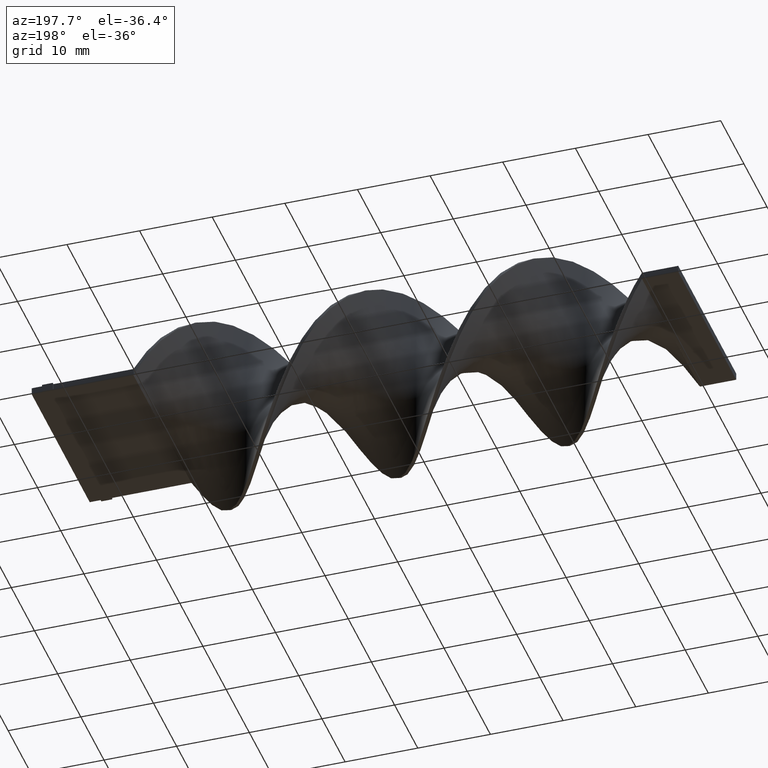
[diagram: clean part render]
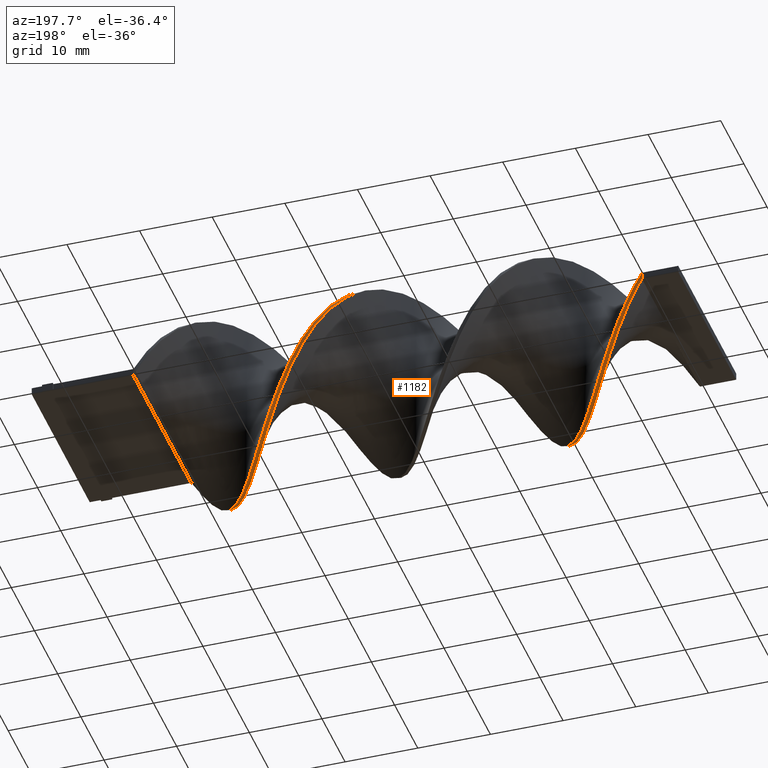
[diagram: same view with one face highlighted and labeled with its STEP entity id]
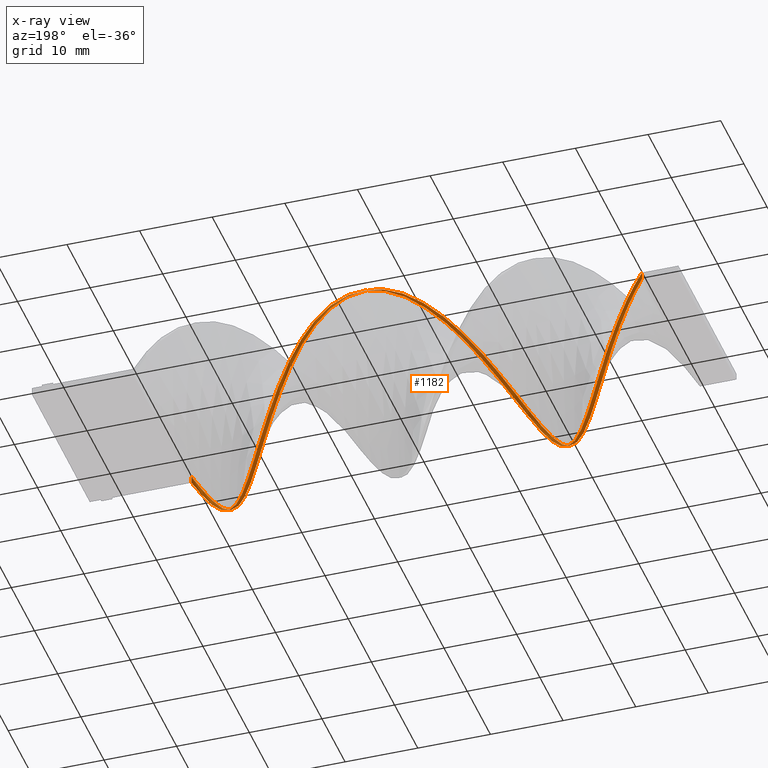
[diagram: x-ray of the same camera — body ghosted, the highlighted face saturated]
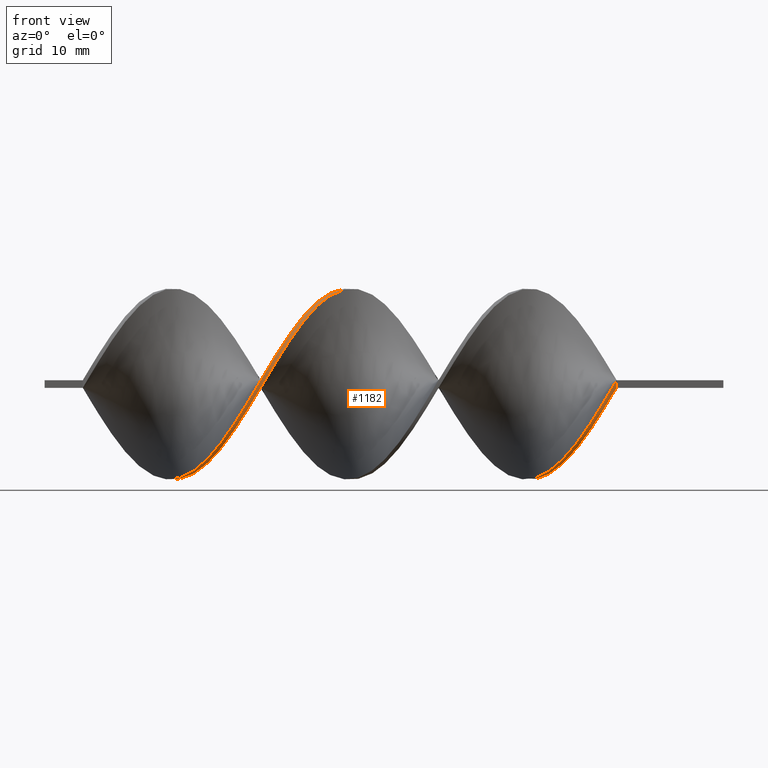
[diagram: same view with one face highlighted and labeled with its STEP entity id]
A machine part, auxiliary view. The second image highlights one B-rep face of the part: STEP entity #1182.
The next image is the same camera in x-ray: the body ghosted, the highlighted face saturated — about 9% of this face is hidden behind the body in this view.
A second angle (front view) of the same face is appended — the face is thin or edge-on in the first view.
In plain terms, the highlighted face is a freeform B-spline surface patch.
Its self-contained STEP definition (entity closure, byte-faithful):
#4 = CARTESIAN_POINT ( 'NONE',  ( -82.20512820512820440, 12.25643054996942816, -2.505974894881450421 ) ) ;
#10 = CARTESIAN_POINT ( 'NONE',  ( -29.25641025641025550, 6.297684876700515133, -10.91542446871784477 ) ) ;
#18 = CARTESIAN_POINT ( 'NONE',  ( -29.25641025641025550, 5.405725462660111447, -11.38356088229226870 ) ) ;
#23 = CARTESIAN_POINT ( 'NONE',  ( -23.87179487179487225, -3.502453542048291624, -12.10537671137499238 ) ) ;
#26 = CARTESIAN_POINT ( 'NONE',  ( -19.38461538461537970, -9.687945681259163777, -7.914777853924387152 ) ) ;
#32 = CARTESIAN_POINT ( 'NONE',  ( -38.23076923076921929, 12.56071099161113303, 1.017774790278253905 ) ) ;
#35 = ORIENTED_EDGE ( 'NONE', *, *, #440, .T. ) ;
#37 = CARTESIAN_POINT ( 'NONE',  ( -19.38461538461537970, -9.687945681259163777, -7.914777853924387152 ) ) ;
#44 = CARTESIAN_POINT ( 'NONE',  ( -55.28205128205128460, -9.687945681259160224, 7.914777853924392481 ) ) ;
#47 = CARTESIAN_POINT ( 'NONE',  ( -22.07692307692307310, -5.405725462660115888, -11.38356088229227048 ) ) ;
#53 = CARTESIAN_POINT ( 'NONE',  ( -52.58974358974358410, -5.405725462660106118, 11.38356088229227225 ) ) ;
#56 = CARTESIAN_POINT ( 'NONE',  ( -24.76923076923076650, -2.003062940240569301, -12.34859258609801458 ) ) ;
#57 = CARTESIAN_POINT ( 'NONE',  ( -76.82051282051281760, 7.512301267086272993, -10.00326595030512955 ) ) ;
#64 = CARTESIAN_POINT ( 'NONE',  ( -68.74358974358973740, -5.405725462660115888, -11.38356088229227048 ) ) ;
#67 = CARTESIAN_POINT ( 'NONE',  ( -79.51282051282051100, 10.07673670631160512, -7.567476692410685324 ) ) ;
#68 = CARTESIAN_POINT ( 'NONE',  ( -53.48717948717948900, -6.689317401192618640, 10.57133069703628614 ) ) ;
#73 = CARTESIAN_POINT ( 'NONE',  ( -28.35897435897435059, 4.900069209374399826, -11.51040059004641769 ) ) ;
#74 = CARTESIAN_POINT ( 'NONE',  ( -63.35897435897434349, -11.95215010832773217, -3.994174999484634281 ) ) ;
#82 = CARTESIAN_POINT ( 'NONE',  ( -27.46153846153845990, 3.502453542048286739, -12.10537671137499238 ) ) ;
#83 = CARTESIAN_POINT ( 'NONE',  ( -74.12820512820512420, 2.524380470717861424, -12.34645007188564136 ) ) ;
#84 = CARTESIAN_POINT ( 'NONE',  ( -67.84615384615385381, -7.512301267086279211, -10.00326595030512777 ) ) ;
#88 = CARTESIAN_POINT ( 'NONE',  ( -30.15384615384614975, 6.689317401192616863, -10.57133069703628436 ) ) ;
#96 = CARTESIAN_POINT ( 'NONE',  ( -26.56410256410255855, 1.010354066142507001, -12.46912926635333640 ) ) ;
#103 = CARTESIAN_POINT ( 'NONE',  ( -46.30769230769229949, 3.965052966688989322, 11.86500547708895148 ) ) ;
#110 = CARTESIAN_POINT ( 'NONE',  ( -73.23076923076922640, 1.010354066142507001, -12.46912926635333640 ) ) ;
#118 = CARTESIAN_POINT ( 'NONE',  ( -37.33333333333332860, 12.49999999999999822, 0.4999999999999985012 ) ) ;
#120 = CARTESIAN_POINT ( 'NONE',  ( -45.41025641025640880, 6.297684876700521350, 10.91542446871784122 ) ) ;
#125 = CARTESIAN_POINT ( 'NONE',  ( -53.48717948717948900, -7.512301267086274770, 10.00326595030513133 ) ) ;
#141 = CARTESIAN_POINT ( 'NONE',  ( -25.66666666666666785, -0.5036723384328442021, -12.59180846082103855 ) ) ;
#147 = CARTESIAN_POINT ( 'NONE',  ( -13.99999999999999467, -12.50000000000000178, 0.5000000000000000000 ) ) ;
#148 = CARTESIAN_POINT ( 'NONE',  ( -84.00000000000000000, 12.49999999999999822, -0.5000000000000015543 ) ) ;
#150 = CARTESIAN_POINT ( 'NONE',  ( -40.02564102564101489, 11.95215010832772862, 3.994174999484630284 ) ) ;
#160 = CARTESIAN_POINT ( 'NONE',  ( -17.58974358974358410, -11.30056190668700999, -5.366311637720501793 ) ) ;
#165 = CARTESIAN_POINT ( 'NONE',  ( -84.00000000000000000, 12.49999999999999822, 0.4999999999999985012 ) ) ;
#170 = CARTESIAN_POINT ( 'NONE',  ( -35.53846153846153300, 12.25643054996942816, -2.505974894881450421 ) ) ;
#171 = CARTESIAN_POINT ( 'NONE',  ( -73.23076923076922640, 2.003062940240561307, -12.34859258609801458 ) ) ;
#176 = CARTESIAN_POINT ( 'NONE',  ( -34.64102564102564230, 11.95215010832772684, -3.994174999484638722 ) ) ;
#179 = CARTESIAN_POINT ( 'NONE',  ( -61.56410256410256920, -12.56071099161113658, -1.017774790278256791 ) ) ;
#183 = CARTESIAN_POINT ( 'NONE',  ( -57.97435897435897090, -11.95215010832773039, 3.994174999484640498 ) ) ;
#187 = CARTESIAN_POINT ( 'NONE',  ( -49.00000000000000711, 0.5036723384328417596, 12.59180846082103855 ) ) ;
#190 = CARTESIAN_POINT ( 'NONE',  ( -64.25641025641024839, -10.83583873464324299, -6.251767663373711592 ) ) ;
#198 = CARTESIAN_POINT ( 'NONE',  ( -60.66666666666665719, -12.50000000000000178, -0.5000000000000000000 ) ) ;
#199 = CARTESIAN_POINT ( 'NONE',  ( -48.10256410256409509, 2.003062940240569745, 12.34859258609801280 ) ) ;
#200 = CARTESIAN_POINT ( 'NONE',  ( -66.94871794871794179, -8.726917657472039735, -9.091107431892412549 ) ) ;
#205 = CARTESIAN_POINT ( 'NONE',  ( -40.92307692307691980, 11.30056190668700822, 5.366311637720500904 ) ) ;
#207 = CARTESIAN_POINT ( 'NONE',  ( -83.10256410256410220, 12.56071099161113125, -1.017774790278262564 ) ) ;
#210 = CARTESIAN_POINT ( 'NONE',  ( -75.92307692307690559, 5.405725462660110558, -11.38356088229227048 ) ) ;
#215 = CARTESIAN_POINT ( 'NONE',  ( -84.00000000000000000, 12.49999999999999822, 0.4999999999999985012 ) ) ;
#218 = CARTESIAN_POINT ( 'NONE',  ( -83.10256410256410220, 12.43928900838886875, -2.017774790278262564 ) ) ;
#220 = CARTESIAN_POINT ( 'NONE',  ( -22.97435897435896734, -3.965052966688991098, -11.86500547708895148 ) ) ;
#231 = CARTESIAN_POINT ( 'NONE',  ( -77.71794871794874382, 8.726917657472030854, -9.091107431892416102 ) ) ;
#240 = CARTESIAN_POINT ( 'NONE',  ( -52.58974358974357699, -6.297684876700514245, 10.91542446871784477 ) ) ;
#250 = CARTESIAN_POINT ( 'NONE',  ( -39.12820512820512420, 12.01711488568187214, 3.476916712307494439 ) ) ;
#257 = CARTESIAN_POINT ( 'NONE',  ( -66.94871794871792758, -7.972909339725129385, -9.759100511780298248 ) ) ;
#259 = CARTESIAN_POINT ( 'NONE',  ( -44.51282051282050389, 7.512301267086275658, 10.00326595030512777 ) ) ;
#264 = CARTESIAN_POINT ( 'NONE',  ( -39.12820512820512420, 12.25643054996942816, 2.505974894881441539 ) ) ;
#270 = CARTESIAN_POINT ( 'NONE',  ( -70.53846153846153300, -2.524380470717866309, -12.34645007188564136 ) ) ;
#274 = CARTESIAN_POINT ( 'NONE',  ( -19.38461538461537970, -9.024823023018369028, -8.663288602095489566 ) ) ;
#279 = CARTESIAN_POINT ( 'NONE',  ( -67.84615384615385381, -6.689317401192623080, -10.57133069703628259 ) ) ;
#283 = CARTESIAN_POINT ( 'NONE',  ( -48.10256410256409509, 1.010354066142515661, 12.46912926635333818 ) ) ;
#284 = CARTESIAN_POINT ( 'NONE',  ( -57.97435897435897090, -11.95215010832773039, 3.994174999484640498 ) ) ;
#291 = CARTESIAN_POINT ( 'NONE',  ( -40.92307692307691980, 10.83583873464323943, 6.251767663373710704 ) ) ;
#293 = CARTESIAN_POINT ( 'NONE',  ( -76.82051282051281760, 6.689317401192616863, -10.57133069703628436 ) ) ;
#298 = CARTESIAN_POINT ( 'NONE',  ( -21.17948717948717530, -6.689317401192623080, -10.57133069703628259 ) ) ;
#301 = CARTESIAN_POINT ( 'NONE',  ( -62.46153846153845990, -12.25643054996943171, -2.505974894881445980 ) ) ;
#306 = CARTESIAN_POINT ( 'NONE',  ( -58.87179487179486159, -12.25643054996942993, 2.505974894881457526 ) ) ;
#311 = CARTESIAN_POINT ( 'NONE',  ( -75.02564102564102200, 3.965052966688984437, -11.86500547708895326 ) ) ;
#316 = CARTESIAN_POINT ( 'NONE',  ( -32.84615384615384670, 10.64897370504628604, -6.738448275956368860 ) ) ;
#318 = CARTESIAN_POINT ( 'NONE',  ( -66.94871794871792758, -8.726917657472039735, -9.091107431892410773 ) ) ;
#323 = ORIENTED_EDGE ( 'NONE', *, *, #1490, .F. ) ;
#327 = CARTESIAN_POINT ( 'NONE',  ( -64.25641025641024839, -11.30056190668700999, -5.366311637720501793 ) ) ;
#329 = CARTESIAN_POINT ( 'NONE',  ( -69.64102564102563520, -4.900069209374406931, -11.51040059004641591 ) ) ;
#339 = CARTESIAN_POINT ( 'NONE',  ( -43.61538461538461320, 7.972909339725127609, 9.759100511780294696 ) ) ;
#347 = CARTESIAN_POINT ( 'NONE',  ( -13.99999999999999467, -12.50000000000000178, 0.5000000000000000000 ) ) ;
#348 = CARTESIAN_POINT ( 'NONE',  ( -33.74358974358973740, 11.30056190668700644, -5.366311637720503569 ) ) ;
#355 = CARTESIAN_POINT ( 'NONE',  ( -84.00000000000000000, 12.49999999999999822, -0.5000000000000015543 ) ) ;
#357 = CARTESIAN_POINT ( 'NONE',  ( -31.94871794871793824, 9.687945681259156672, -7.914777853924392481 ) ) ;
#368 = CARTESIAN_POINT ( 'NONE',  ( -50.79487179487178139, -3.502453542048286295, 12.10537671137499238 ) ) ;
#386 = CARTESIAN_POINT ( 'NONE',  ( -33.74358974358973740, 10.83583873464323766, -6.251767663373713368 ) ) ;
#388 = CARTESIAN_POINT ( 'NONE',  ( -43.61538461538461320, 8.726917657472037959, 9.091107431892408997 ) ) ;
#394 = CARTESIAN_POINT ( 'NONE',  ( -75.92307692307691980, 6.297684876700515133, -10.91542446871784477 ) ) ;
#398 = CARTESIAN_POINT ( 'NONE',  ( -21.17948717948717530, -7.512301267086279211, -10.00326595030512777 ) ) ;
#403 = CARTESIAN_POINT ( 'NONE',  ( -61.56410256410256920, -12.43928900838887230, -2.017774790278256791 ) ) ;
#408 = CARTESIAN_POINT ( 'NONE',  ( -15.79487179487178850, -12.01711488568187214, -3.476916712307497548 ) ) ;
#411 = CARTESIAN_POINT ( 'NONE',  ( -26.56410256410255855, 1.010354066142507001, -12.46912926635333640 ) ) ;
#417 = CARTESIAN_POINT ( 'NONE',  ( -22.07692307692307665, -6.297684876700518686, -10.91542446871784477 ) ) ;
#420 = CARTESIAN_POINT ( 'NONE',  ( -64.25641025641024839, -11.30056190668700999, -5.366311637720501793 ) ) ;
#424 = CARTESIAN_POINT ( 'NONE',  ( -49.00000000000000000, -0.5036723384328410935, 12.59180846082103855 ) ) ;
#425 = LINE ( 'NONE', #925, #901 ) ;
#426 = CARTESIAN_POINT ( 'NONE',  ( -41.82051282051281760, 10.64897370504628960, 6.738448275956367084 ) ) ;
#431 = CARTESIAN_POINT ( 'NONE',  ( -26.56410256410255855, 2.003062940240561307, -12.34859258609801458 ) ) ;
#433 = CARTESIAN_POINT ( 'NONE',  ( -67.84615384615385381, -7.512301267086279211, -10.00326595030512777 ) ) ;
#435 = CARTESIAN_POINT ( 'NONE',  ( -59.76923076923076650, -12.43928900838887230, 2.017774790278263897 ) ) ;
#440 = EDGE_CURVE ( 'NONE', #1458, #1342, #1468, .T. ) ;
#442 = CARTESIAN_POINT ( 'NONE',  ( -41.82051282051281760, 10.07673670631160689, 7.567476692410682659 ) ) ;
#444 = CARTESIAN_POINT ( 'NONE',  ( -69.64102564102563520, -4.900069209374406931, -11.51040059004641591 ) ) ;
#451 = CARTESIAN_POINT ( 'NONE',  ( -67.84615384615385381, -6.689317401192623080, -10.57133069703628259 ) ) ;
#465 = CARTESIAN_POINT ( 'NONE',  ( -75.02564102564102200, 4.900069209374399826, -11.51040059004641769 ) ) ;
#467 = CARTESIAN_POINT ( 'NONE',  ( -42.71794871794871540, 9.687945681259162001, 7.914777853924385376 ) ) ;
#475 = CARTESIAN_POINT ( 'NONE',  ( -75.02564102564102200, 3.965052966688984437, -11.86500547708895326 ) ) ;
#495 = CARTESIAN_POINT ( 'NONE',  ( -22.97435897435896734, -4.900069209374406931, -11.51040059004641591 ) ) ;
#501 = CARTESIAN_POINT ( 'NONE',  ( -49.00000000000000711, -0.5036723384328410935, 12.59180846082103855 ) ) ;
#508 = CARTESIAN_POINT ( 'NONE',  ( -28.35897435897435059, 4.900069209374399826, -11.51040059004641769 ) ) ;
#515 = CARTESIAN_POINT ( 'NONE',  ( -31.05128205128205465, 7.972909339725120503, -9.759100511780301801 ) ) ;
#519 = B_SPLINE_CURVE_WITH_KNOTS ( 'NONE', 3,
 ( #1386, #1249, #1380, #148 ),
 .UNSPECIFIED., .F., .F.,
 ( 4, 4 ),
 ( 0.000000000000000000, 1.000000000000000000 ),
 .UNSPECIFIED. ) ;
#523 = CARTESIAN_POINT ( 'NONE',  ( -65.15384615384614619, -10.07673670631161045, -7.567476692410683548 ) ) ;
#527 = CARTESIAN_POINT ( 'NONE',  ( -20.28205128205128105, -8.726917657472039735, -9.091107431892412549 ) ) ;
#531 = CARTESIAN_POINT ( 'NONE',  ( -24.76923076923076650, -2.003062940240569301, -12.34859258609801458 ) ) ;
#537 = CARTESIAN_POINT ( 'NONE',  ( -14.89743589743589247, -12.56071099161113480, -1.017774790278256569 ) ) ;
#540 = CARTESIAN_POINT ( 'NONE',  ( -56.17948717948717530, -10.64897370504628960, 6.738448275956371525 ) ) ;
#544 = VERTEX_POINT ( 'NONE', #1543 ) ;
#545 = CARTESIAN_POINT ( 'NONE',  ( -79.51282051282051100, 10.64897370504628604, -6.738448275956369748 ) ) ;
#551 = CARTESIAN_POINT ( 'NONE',  ( -51.69230769230769340, -4.900069209374404267, 11.51040059004641769 ) ) ;
#558 = CARTESIAN_POINT ( 'NONE',  ( -55.28205128205128460, -9.024823023018361923, 8.663288602095494895 ) ) ;
#561 = CARTESIAN_POINT ( 'NONE',  ( -29.25641025641025550, 6.297684876700515133, -10.91542446871784655 ) ) ;
#566 = CARTESIAN_POINT ( 'NONE',  ( -69.64102564102563520, -3.965052966688991098, -11.86500547708895148 ) ) ;
#571 = CARTESIAN_POINT ( 'NONE',  ( -53.48717948717948900, -6.689317401192618640, 10.57133069703628614 ) ) ;
#572 = CARTESIAN_POINT ( 'NONE',  ( -47.20512820512820440, 3.502453542048287183, 12.10537671137499238 ) ) ;
#576 = CARTESIAN_POINT ( 'NONE',  ( -62.46153846153845990, -12.01711488568187214, -3.476916712307497548 ) ) ;
#578 = CARTESIAN_POINT ( 'NONE',  ( -81.30769230769233502, 11.59494076297487197, -4.936058634336743189 ) ) ;
#582 = CARTESIAN_POINT ( 'NONE',  ( -70.53846153846153300, -2.524380470717866309, -12.34645007188563959 ) ) ;
#584 = CARTESIAN_POINT ( 'NONE',  ( -78.61538461538461320, 9.024823023018361923, -8.663288602095494895 ) ) ;
#587 = CARTESIAN_POINT ( 'NONE',  ( -37.33333333333332860, 12.49999999999999822, -0.5000000000000015543 ) ) ;
#595 = CARTESIAN_POINT ( 'NONE',  ( -78.61538461538461320, 9.024823023018361923, -8.663288602095494895 ) ) ;
#599 = CARTESIAN_POINT ( 'NONE',  ( -33.74358974358973740, 10.83583873464323766, -6.251767663373713368 ) ) ;
#607 = CARTESIAN_POINT ( 'NONE',  ( -79.51282051282051100, 10.07673670631160334, -7.567476692410685324 ) ) ;
#613 = CARTESIAN_POINT ( 'NONE',  ( -23.87179487179487225, -3.502453542048291624, -12.10537671137499238 ) ) ;
#618 = CARTESIAN_POINT ( 'NONE',  ( -27.46153846153845990, 3.502453542048287183, -12.10537671137499238 ) ) ;
#620 = CARTESIAN_POINT ( 'NONE',  ( -31.05128205128205110, 7.972909339725121391, -9.759100511780301801 ) ) ;
#625 = CARTESIAN_POINT ( 'NONE',  ( -21.17948717948717530, -6.689317401192623080, -10.57133069703628259 ) ) ;
#629 = ORIENTED_EDGE ( 'NONE', *, *, #870, .F. ) ;
#633 =( BOUNDED_CURVE ( )  B_SPLINE_CURVE ( 2, ( #1030, #1525, #408, #919, #906, #1398, #274, #1415, #298, #47, #1561, #680, #1166, #1081, #431, #82, #73, #561, #1444, #953, #1407, #316, #1060, #176, #170, #817, #1288, #1545, #944, #937, #291, #442, #1052, #805, #1178, #1320, #1304, #1421, #283, #424, #834, #1313, #551, #1072, #1551, #1569, #1435, #1044, #929, #183, #306, #711, #198, #827, #576, #689, #190, #697, #1294, #1195, #451, #64, #566, #582, #702, #1578, #1187, #1171, #465, #801, #57, #231, #1339, #754, #1111, #984, #4, #207, #215 ),
 .UNSPECIFIED., .F., .T. ) 
 B_SPLINE_CURVE_WITH_KNOTS ( ( 3, 2, 2, 2, 2, 2, 2, 2, 2, 2, 2, 2, 2, 2, 2, 2, 2, 2, 2, 2, 2, 2, 2, 2, 2, 2, 2, 2, 2, 2, 2, 2, 2, 2, 2, 2, 2, 2, 2, 3 ),
 ( 0.000000000000000000, 0.01923076923076923184, 0.03846153846153846367, 0.05769230769230768857, 0.07692307692307692735, 0.09615384615384615918, 0.1153846153846153771, 0.1346153846153846090, 0.1538461538461538547, 0.1730769230769230449, 0.1923076923076923184, 0.2115384615384615363, 0.2307692307692307543, 0.2500000000000000000, 0.2692307692307692180, 0.2884615384615384359, 0.3076923076923077094, 0.3269230769230769273, 0.3461538461538460898, 0.3653846153846153633, 0.3846153846153846367, 0.4038461538461539102, 0.4230769230769230727, 0.4423076923076922906, 0.4615384615384615086, 0.4807692307692307820, 0.5000000000000000000, 0.5192307692307692735, 0.5384615384615384359, 0.5576923076923077094, 0.5769230769230768718, 0.5961538461538461453, 0.6153846153846154188, 0.6346153846153845812, 0.6538461538461538547, 0.6730769230769230171, 0.6923076923076921796, 0.7115384615384615641, 0.7307692307692307265, 0.7500000000000000000 ),
 .UNSPECIFIED. ) 
 CURVE ( )  GEOMETRIC_REPRESENTATION_ITEM ( )  RATIONAL_B_SPLINE_CURVE ( ( 1.000000000000000000, 0.9927088740980539727, 1.000000000000000000, 0.9927088740980539727, 1.000000000000000000, 0.9927088740980539727, 1.000000000000000000, 0.9927088740980539727, 1.000000000000000000, 0.9927088740980539727, 1.000000000000000000, 0.9927088740980539727, 1.000000000000000000, 0.9927088740980539727, 1.000000000000000000, 0.9927088740980539727, 1.000000000000000000, 0.9927088740980539727, 1.000000000000000000, 0.9927088740980539727, 1.000000000000000000, 0.9927088740980539727, 1.000000000000000000, 0.9927088740980539727, 1.000000000000000000, 0.9927088740980539727, 1.000000000000000000, 0.9927088740980539727, 1.000000000000000000, 0.9927088740980539727, 1.000000000000000000, 0.9927088740980539727, 1.000000000000000000, 0.9927088740980539727, 1.000000000000000000, 0.9927088740980539727, 1.000000000000000000, 0.9927088740980539727, 1.000000000000000000, 0.9927088740980539727, 1.000000000000000000, 0.9927088740980539727, 1.000000000000000000, 0.9927088740980539727, 1.000000000000000000, 0.9927088740980539727, 1.000000000000000000, 0.9927088740980539727, 1.000000000000000000, 0.9927088740980539727, 1.000000000000000000, 0.9927088740980539727, 1.000000000000000000, 0.9927088740980539727, 1.000000000000000000, 0.9927088740980539727, 1.000000000000000000, 0.9927088740980539727, 1.000000000000000000, 0.9927088740980539727, 1.000000000000000000, 0.9927088740980539727, 1.000000000000000000, 0.9927088740980539727, 1.000000000000000000, 0.9927088740980539727, 1.000000000000000000, 0.9927088740980539727, 1.000000000000000000, 0.9927088740980539727, 1.000000000000000000, 0.9927088740980539727, 1.000000000000000000, 0.9927088740980539727, 1.000000000000000000, 0.9927088740980539727, 1.000000000000000000, 0.9927088740980539727, 1.000000000000000000 ) ) 
 REPRESENTATION_ITEM ( '' )  );
#636 = CARTESIAN_POINT ( 'NONE',  ( -54.38461538461537970, -8.726917657472029077, 9.091107431892417878 ) ) ;
#642 = CARTESIAN_POINT ( 'NONE',  ( -15.79487179487178850, -12.01711488568187214, -3.476916712307497548 ) ) ;
#644 = CARTESIAN_POINT ( 'NONE',  ( -15.79487179487178850, -12.25643054996943171, -2.505974894881445980 ) ) ;
#649 = CARTESIAN_POINT ( 'NONE',  ( -28.35897435897435059, 3.965052966688984437, -11.86500547708895326 ) ) ;
#658 = CARTESIAN_POINT ( 'NONE',  ( -83.10256410256410220, 12.56071099161113303, -1.017774790278262564 ) ) ;
#666 = CARTESIAN_POINT ( 'NONE',  ( -58.87179487179486159, -12.25643054996942993, 2.505974894881457526 ) ) ;
#675 = CARTESIAN_POINT ( 'NONE',  ( -63.35897435897434349, -11.59494076297487730, -4.936058634336738749 ) ) ;
#680 = CARTESIAN_POINT ( 'NONE',  ( -23.87179487179487225, -2.524380470717866309, -12.34645007188563959 ) ) ;
#683 = CARTESIAN_POINT ( 'NONE',  ( -15.79487179487178850, -12.25643054996943171, -2.505974894881445980 ) ) ;
#689 = CARTESIAN_POINT ( 'NONE',  ( -63.35897435897435059, -11.59494076297487730, -4.936058634336738749 ) ) ;
#691 = CARTESIAN_POINT ( 'NONE',  ( -82.20512820512820440, 12.01711488568186859, -3.476916712307501989 ) ) ;
#694 = CARTESIAN_POINT ( 'NONE',  ( -13.99999999999999467, -12.50000000000000178, -0.5000000000000000000 ) ) ;
#697 = CARTESIAN_POINT ( 'NONE',  ( -65.15384615384614619, -10.07673670631160867, -7.567476692410683548 ) ) ;
#698 = CARTESIAN_POINT ( 'NONE',  ( -44.51282051282050389, 7.512301267086275658, 10.00326595030512777 ) ) ;
#700 = CARTESIAN_POINT ( 'NONE',  ( -56.17948717948717530, -10.07673670631160689, 7.567476692410687100 ) ) ;
#702 = CARTESIAN_POINT ( 'NONE',  ( -71.43589743589743080, -1.010354066142515217, -12.46912926635333640 ) ) ;
#703 = CARTESIAN_POINT ( 'NONE',  ( -59.76923076923077360, -12.43928900838887230, 2.017774790278263897 ) ) ;
#711 = CARTESIAN_POINT ( 'NONE',  ( -59.76923076923076650, -12.56071099161113480, 1.017774790278263897 ) ) ;
#712 = CARTESIAN_POINT ( 'NONE',  ( -58.87179487179486159, -12.01711488568187036, 3.476916712307509094 ) ) ;
#715 = CARTESIAN_POINT ( 'NONE',  ( -41.82051282051281760, 10.64897370504628960, 6.738448275956366196 ) ) ;
#721 = CARTESIAN_POINT ( 'NONE',  ( -76.82051282051281760, 6.689317401192616863, -10.57133069703628436 ) ) ;
#730 = CARTESIAN_POINT ( 'NONE',  ( -20.28205128205128105, -7.972909339725129385, -9.759100511780298248 ) ) ;
#732 = CARTESIAN_POINT ( 'NONE',  ( -22.07692307692307310, -6.297684876700517798, -10.91542446871784655 ) ) ;
#739 = CARTESIAN_POINT ( 'NONE',  ( -70.53846153846153300, -3.502453542048291624, -12.10537671137499238 ) ) ;
#741 = CARTESIAN_POINT ( 'NONE',  ( -40.02564102564101489, 11.59494076297487375, 4.936058634336734308 ) ) ;
#749 = CARTESIAN_POINT ( 'NONE',  ( -13.99999999999999467, -12.50000000000000178, -0.5000000000000000000 ) ) ;
#754 = CARTESIAN_POINT ( 'NONE',  ( -79.51282051282051100, 10.64897370504628604, -6.738448275956368860 ) ) ;
#757 = CARTESIAN_POINT ( 'NONE',  ( -26.56410256410255855, 2.003062940240561307, -12.34859258609801458 ) ) ;
#765 = CARTESIAN_POINT ( 'NONE',  ( -25.66666666666666785, 0.5036723384328388731, -12.59180846082103855 ) ) ;
#766 = CARTESIAN_POINT ( 'NONE',  ( -46.30769230769229949, 4.900069209374405155, 11.51040059004641591 ) ) ;
#774 = CARTESIAN_POINT ( 'NONE',  ( -16.69230769230769340, -11.95215010832773217, -3.994174999484634281 ) ) ;
#782 = CARTESIAN_POINT ( 'NONE',  ( -69.64102564102563520, -3.965052966688991098, -11.86500547708895148 ) ) ;
#789 = CARTESIAN_POINT ( 'NONE',  ( -81.30769230769233502, 11.95215010832772684, -3.994174999484638722 ) ) ;
#797 = CARTESIAN_POINT ( 'NONE',  ( -60.66666666666665719, -12.50000000000000178, -0.5000000000000000000 ) ) ;
#801 = CARTESIAN_POINT ( 'NONE',  ( -75.92307692307690559, 6.297684876700515133, -10.91542446871784655 ) ) ;
#803 = CARTESIAN_POINT ( 'NONE',  ( -80.41025641025640880, 11.30056190668700644, -5.366311637720503569 ) ) ;
#805 = CARTESIAN_POINT ( 'NONE',  ( -43.61538461538461320, 7.972909339725128497, 9.759100511780294696 ) ) ;
#808 = CARTESIAN_POINT ( 'NONE',  ( -70.53846153846153300, -3.502453542048291624, -12.10537671137499238 ) ) ;
#817 = CARTESIAN_POINT ( 'NONE',  ( -36.43589743589743080, 12.56071099161113125, -1.017774790278262564 ) ) ;
#823 = CARTESIAN_POINT ( 'NONE',  ( -57.97435897435897090, -11.59494076297487553, 4.936058634336744966 ) ) ;
#827 = CARTESIAN_POINT ( 'NONE',  ( -61.56410256410256920, -12.43928900838887230, -2.017774790278256791 ) ) ;
#828 = CARTESIAN_POINT ( 'NONE',  ( -75.92307692307691980, 5.405725462660111447, -11.38356088229226870 ) ) ;
#834 = CARTESIAN_POINT ( 'NONE',  ( -49.89743589743589069, -2.003062940240558198, 12.34859258609801635 ) ) ;
#836 = CARTESIAN_POINT ( 'NONE',  ( -57.07692307692306599, -10.83583873464323766, 6.251767663373719586 ) ) ;
#847 = CARTESIAN_POINT ( 'NONE',  ( -72.33333333333332860, -0.5036723384328442021, -12.59180846082103855 ) ) ;
#861 = CARTESIAN_POINT ( 'NONE',  ( -80.41025641025640880, 10.83583873464323766, -6.251767663373713368 ) ) ;
#862 = CARTESIAN_POINT ( 'NONE',  ( -44.51282051282050389, 6.689317401192619528, 10.57133069703628259 ) ) ;
#864 = CARTESIAN_POINT ( 'NONE',  ( -35.53846153846153300, 12.25643054996942816, -2.505974894881450421 ) ) ;
#870 = EDGE_CURVE ( 'NONE', #1458, #950, #425, .T. ) ;
#873 = CARTESIAN_POINT ( 'NONE',  ( -32.84615384615384670, 10.64897370504628604, -6.738448275956369748 ) ) ;
#877 = CARTESIAN_POINT ( 'NONE',  ( -36.43589743589743080, 12.43928900838886875, -2.017774790278262564 ) ) ;
#885 = CARTESIAN_POINT ( 'NONE',  ( -51.69230769230769340, -4.900069209374404267, 11.51040059004641769 ) ) ;
#900 = CARTESIAN_POINT ( 'NONE',  ( -27.46153846153845990, 2.524380470717861424, -12.34645007188564136 ) ) ;
#901 = VECTOR ( 'NONE', #1408, 1000.000000000000000 ) ;
#905 = CARTESIAN_POINT ( 'NONE',  ( -17.58974358974358410, -11.30056190668700999, -5.366311637720501793 ) ) ;
#906 = CARTESIAN_POINT ( 'NONE',  ( -17.58974358974358410, -10.83583873464324299, -6.251767663373711592 ) ) ;
#907 = CARTESIAN_POINT ( 'NONE',  ( -35.53846153846153300, 12.01711488568186859, -3.476916712307501989 ) ) ;
#916 = CARTESIAN_POINT ( 'NONE',  ( -75.02564102564102200, 4.900069209374399826, -11.51040059004641769 ) ) ;
#919 = CARTESIAN_POINT ( 'NONE',  ( -16.69230769230768985, -11.59494076297487730, -4.936058634336738749 ) ) ;
#920 = CARTESIAN_POINT ( 'NONE',  ( -36.43589743589743080, 12.43928900838886875, -2.017774790278262564 ) ) ;
#925 = CARTESIAN_POINT ( 'NONE',  ( -13.99999999999999467, -12.50000000000000178, 0.5000000000000000000 ) ) ;
#926 = CARTESIAN_POINT ( 'NONE',  ( -31.94871794871793824, 9.024823023018361923, -8.663288602095494895 ) ) ;
#929 = CARTESIAN_POINT ( 'NONE',  ( -57.07692307692306599, -11.30056190668700644, 5.366311637720509786 ) ) ;
#931 = CARTESIAN_POINT ( 'NONE',  ( -60.66666666666665719, -12.50000000000000178, 0.5000000000000000000 ) ) ;
#934 = CARTESIAN_POINT ( 'NONE',  ( -39.12820512820512420, 12.25643054996942816, 2.505974894881441539 ) ) ;
#937 = CARTESIAN_POINT ( 'NONE',  ( -40.02564102564101489, 11.59494076297487375, 4.936058634336734308 ) ) ;
#940 = CARTESIAN_POINT ( 'NONE',  ( -60.66666666666665719, -12.50000000000000178, 0.5000000000000000000 ) ) ;
#944 = CARTESIAN_POINT ( 'NONE',  ( -39.12820512820512420, 12.01711488568187214, 3.476916712307494439 ) ) ;
#948 = CARTESIAN_POINT ( 'NONE',  ( -73.23076923076922640, 1.010354066142507001, -12.46912926635333640 ) ) ;
#950 = VERTEX_POINT ( 'NONE', #694 ) ;
#953 = CARTESIAN_POINT ( 'NONE',  ( -31.05128205128205110, 8.726917657472030854, -9.091107431892416102 ) ) ;
#960 = CARTESIAN_POINT ( 'NONE',  ( -45.41025641025640880, 6.297684876700521350, 10.91542446871784122 ) ) ;
#961 = CARTESIAN_POINT ( 'NONE',  ( -68.74358974358973740, -6.297684876700517798, -10.91542446871784655 ) ) ;
#970 = CARTESIAN_POINT ( 'NONE',  ( -30.15384615384614975, 7.512301267086272993, -10.00326595030512955 ) ) ;
#974 = ORIENTED_EDGE ( 'NONE', *, *, #1536, .F. ) ;
#984 = CARTESIAN_POINT ( 'NONE',  ( -81.30769230769232081, 11.95215010832772684, -3.994174999484638722 ) ) ;
#986 = CARTESIAN_POINT ( 'NONE',  ( -19.38461538461537970, -9.024823023018369028, -8.663288602095489566 ) ) ;
#988 = CARTESIAN_POINT ( 'NONE',  ( -35.53846153846153300, 12.01711488568186859, -3.476916712307501989 ) ) ;
#991 = CARTESIAN_POINT ( 'NONE',  ( -40.92307692307691980, 10.83583873464323943, 6.251767663373710704 ) ) ;
#1001 = CARTESIAN_POINT ( 'NONE',  ( -16.69230769230769340, -11.59494076297487730, -4.936058634336738749 ) ) ;
#1009 = CARTESIAN_POINT ( 'NONE',  ( -62.46153846153845990, -12.01711488568187214, -3.476916712307497548 ) ) ;
#1014 = CARTESIAN_POINT ( 'NONE',  ( -66.05128205128204399, -9.024823023018369028, -8.663288602095489566 ) ) ;
#1026 = CARTESIAN_POINT ( 'NONE',  ( -40.92307692307691980, 11.30056190668700822, 5.366311637720500904 ) ) ;
#1030 = CARTESIAN_POINT ( 'NONE',  ( -13.99999999999999467, -12.50000000000000178, -0.5000000000000000000 ) ) ;
#1031 = CARTESIAN_POINT ( 'NONE',  ( -22.97435897435896734, -4.900069209374406931, -11.51040059004641591 ) ) ;
#1033 = CARTESIAN_POINT ( 'NONE',  ( -57.07692307692306599, -10.83583873464323766, 6.251767663373719586 ) ) ;
#1040 = CARTESIAN_POINT ( 'NONE',  ( -82.20512820512820440, 12.25643054996942816, -2.505974894881450421 ) ) ;
#1042 = CARTESIAN_POINT ( 'NONE',  ( -57.97435897435897090, -11.59494076297487553, 4.936058634336744966 ) ) ;
#1044 = CARTESIAN_POINT ( 'NONE',  ( -56.17948717948717530, -10.64897370504628960, 6.738448275956370637 ) ) ;
#1049 = CARTESIAN_POINT ( 'NONE',  ( -58.87179487179486159, -12.01711488568187036, 3.476916712307509094 ) ) ;
#1052 = CARTESIAN_POINT ( 'NONE',  ( -42.71794871794871540, 9.024823023018367252, 8.663288602095487789 ) ) ;
#1060 = CARTESIAN_POINT ( 'NONE',  ( -33.74358974358973740, 11.30056190668700644, -5.366311637720503569 ) ) ;
#1064 = CARTESIAN_POINT ( 'NONE',  ( -51.69230769230769340, -3.965052966688988434, 11.86500547708895326 ) ) ;
#1065 = CARTESIAN_POINT ( 'NONE',  ( -63.35897435897435059, -11.95215010832773217, -3.994174999484634281 ) ) ;
#1072 = CARTESIAN_POINT ( 'NONE',  ( -52.58974358974358410, -6.297684876700513357, 10.91542446871784655 ) ) ;
#1075 = CARTESIAN_POINT ( 'NONE',  ( -55.28205128205128460, -9.024823023018361923, 8.663288602095494895 ) ) ;
#1081 = CARTESIAN_POINT ( 'NONE',  ( -25.66666666666666785, 0.5036723384328388731, -12.59180846082103855 ) ) ;
#1083 = CARTESIAN_POINT ( 'NONE',  ( -65.15384615384614619, -10.64897370504629137, -6.738448275956367972 ) ) ;
#1108 = CARTESIAN_POINT ( 'NONE',  ( -34.64102564102564230, 11.59494076297487197, -4.936058634336743189 ) ) ;
#1111 = CARTESIAN_POINT ( 'NONE',  ( -80.41025641025640880, 11.30056190668700644, -5.366311637720503569 ) ) ;
#1114 = CARTESIAN_POINT ( 'NONE',  ( -17.58974358974358410, -10.83583873464324299, -6.251767663373711592 ) ) ;
#1122 = CARTESIAN_POINT ( 'NONE',  ( -14.89743589743589247, -12.43928900838887230, -2.017774790278256791 ) ) ;
#1125 = CARTESIAN_POINT ( 'NONE',  ( -42.71794871794871540, 9.687945681259162001, 7.914777853924385376 ) ) ;
#1129 = CARTESIAN_POINT ( 'NONE',  ( -23.87179487179487225, -2.524380470717866309, -12.34645007188564136 ) ) ;
#1132 = CARTESIAN_POINT ( 'NONE',  ( -16.69230769230768985, -11.95215010832773217, -3.994174999484634281 ) ) ;
#1136 = CARTESIAN_POINT ( 'NONE',  ( -34.64102564102564230, 11.59494076297487197, -4.936058634336743189 ) ) ;
#1145 = CARTESIAN_POINT ( 'NONE',  ( -30.15384615384614975, 6.689317401192616863, -10.57133069703628436 ) ) ;
#1155 = CARTESIAN_POINT ( 'NONE',  ( -18.48717948717948545, -10.64897370504629137, -6.738448275956367972 ) ) ;
#1162 = CARTESIAN_POINT ( 'NONE',  ( -20.28205128205128105, -8.726917657472039735, -9.091107431892410773 ) ) ;
#1166 = CARTESIAN_POINT ( 'NONE',  ( -24.76923076923076650, -1.010354066142515217, -12.46912926635333640 ) ) ;
#1171 = CARTESIAN_POINT ( 'NONE',  ( -74.12820512820510999, 3.502453542048286739, -12.10537671137499238 ) ) ;
#1173 = CARTESIAN_POINT ( 'NONE',  ( -83.10256410256410220, 12.43928900838886875, -2.017774790278262564 ) ) ;
#1178 = CARTESIAN_POINT ( 'NONE',  ( -44.51282051282050389, 6.689317401192619528, 10.57133069703628259 ) ) ;
#1180 = CARTESIAN_POINT ( 'NONE',  ( -50.79487179487178139, -2.524380470717860536, 12.34645007188564136 ) ) ;
#1182 = ADVANCED_FACE ( 'NONE', ( #1252 ), #1355, .T. ) ;
#1187 = CARTESIAN_POINT ( 'NONE',  ( -73.23076923076922640, 2.003062940240561307, -12.34859258609801458 ) ) ;
#1188 = CARTESIAN_POINT ( 'NONE',  ( -49.89743589743589069, -1.010354066142503893, 12.46912926635333818 ) ) ;
#1195 = CARTESIAN_POINT ( 'NONE',  ( -66.94871794871794179, -7.972909339725130273, -9.759100511780298248 ) ) ;
#1199 = CARTESIAN_POINT ( 'NONE',  ( -71.43589743589743080, -2.003062940240569301, -12.34859258609801458 ) ) ;
#1206 = EDGE_LOOP ( 'NONE', ( #629, #35, #323, #974 ) ) ;
#1208 = CARTESIAN_POINT ( 'NONE',  ( -77.71794871794874382, 7.972909339725121391, -9.759100511780301801 ) ) ;
#1212 = CARTESIAN_POINT ( 'NONE',  ( -25.66666666666666785, -0.5036723384328442021, -12.59180846082103855 ) ) ;
#1218 = CARTESIAN_POINT ( 'NONE',  ( -84.00000000000000000, 12.49999999999999822, -0.5000000000000015543 ) ) ;
#1219 = CARTESIAN_POINT ( 'NONE',  ( -41.82051282051281760, 10.07673670631160867, 7.567476692410682659 ) ) ;
#1225 = CARTESIAN_POINT ( 'NONE',  ( -71.43589743589743080, -2.003062940240569301, -12.34859258609801458 ) ) ;
#1229 = CARTESIAN_POINT ( 'NONE',  ( -28.35897435897435059, 3.965052966688984437, -11.86500547708895326 ) ) ;
#1236 = CARTESIAN_POINT ( 'NONE',  ( -31.05128205128205465, 8.726917657472030854, -9.091107431892414326 ) ) ;
#1244 = CARTESIAN_POINT ( 'NONE',  ( -45.41025641025640880, 5.405725462660119440, 11.38356088229226515 ) ) ;
#1249 = CARTESIAN_POINT ( 'NONE',  ( -84.00000000000000000, 12.49999999999999822, 0.1666666666666651586 ) ) ;
#1252 = FACE_OUTER_BOUND ( 'NONE', #1206, .T. ) ;
#1258 = CARTESIAN_POINT ( 'NONE',  ( -68.74358974358973740, -5.405725462660116776, -11.38356088229226870 ) ) ;
#1264 = CARTESIAN_POINT ( 'NONE',  ( -32.84615384615384670, 10.07673670631160512, -7.567476692410685324 ) ) ;
#1273 = CARTESIAN_POINT ( 'NONE',  ( -74.12820512820512420, 3.502453542048287183, -12.10537671137499238 ) ) ;
#1282 = CARTESIAN_POINT ( 'NONE',  ( -72.33333333333332860, 0.5036723384328388731, -12.59180846082103855 ) ) ;
#1284 = CARTESIAN_POINT ( 'NONE',  ( -49.89743589743589069, -1.010354066142503893, 12.46912926635333818 ) ) ;
#1288 = CARTESIAN_POINT ( 'NONE',  ( -37.33333333333332860, 12.49999999999999822, 0.4999999999999985012 ) ) ;
#1291 = CARTESIAN_POINT ( 'NONE',  ( -21.17948717948717530, -7.512301267086279211, -10.00326595030512777 ) ) ;
#1294 = CARTESIAN_POINT ( 'NONE',  ( -66.05128205128204399, -9.024823023018369028, -8.663288602095489566 ) ) ;
#1296 = CARTESIAN_POINT ( 'NONE',  ( -77.71794871794872961, 7.972909339725120503, -9.759100511780301801 ) ) ;
#1304 = CARTESIAN_POINT ( 'NONE',  ( -46.30769230769229949, 3.965052966688989322, 11.86500547708895148 ) ) ;
#1308 = CARTESIAN_POINT ( 'NONE',  ( -47.20512820512820440, 3.502453542048287627, 12.10537671137499238 ) ) ;
#1309 = CARTESIAN_POINT ( 'NONE',  ( -51.69230769230769340, -3.965052966688988434, 11.86500547708895326 ) ) ;
#1313 = CARTESIAN_POINT ( 'NONE',  ( -50.79487179487178139, -3.502453542048285851, 12.10537671137499238 ) ) ;
#1314 = CARTESIAN_POINT ( 'NONE',  ( -66.05128205128204399, -9.687945681259163777, -7.914777853924387152 ) ) ;
#1315 = CARTESIAN_POINT ( 'NONE',  ( -65.15384615384614619, -10.64897370504629137, -6.738448275956367084 ) ) ;
#1320 = CARTESIAN_POINT ( 'NONE',  ( -45.41025641025640880, 5.405725462660118552, 11.38356088229226515 ) ) ;
#1322 = CARTESIAN_POINT ( 'NONE',  ( -54.38461538461537970, -7.972909339725118727, 9.759100511780305354 ) ) ;
#1326 = CARTESIAN_POINT ( 'NONE',  ( -40.02564102564101489, 11.95215010832772862, 3.994174999484630284 ) ) ;
#1334 = CARTESIAN_POINT ( 'NONE',  ( -74.12820512820510999, 2.524380470717861424, -12.34645007188563959 ) ) ;
#1339 = CARTESIAN_POINT ( 'NONE',  ( -78.61538461538461320, 9.687945681259156672, -7.914777853924392481 ) ) ;
#1342 = VERTEX_POINT ( 'NONE', #355 ) ;
#1346 = CARTESIAN_POINT ( 'NONE',  ( -22.07692307692307665, -5.405725462660116776, -11.38356088229226870 ) ) ;
#1353 = CARTESIAN_POINT ( 'NONE',  ( -47.20512820512820440, 2.524380470717861868, 12.34645007188564136 ) ) ;
#1355 =( BOUNDED_SURFACE ( )  B_SPLINE_SURFACE ( 1, 2, ( 
 ( #749, #1122, #642, #1001, #1114, #1477, #986, #730, #625, #1346, #220, #1129, #1609, #765, #757, #618, #508, #10, #970, #1236, #357, #873, #348, #1501, #864, #1377, #118, #1601, #250, #741, #991, #1219, #1466, #339, #862, #1244, #103, #1353, #1372, #501, #1494, #368, #885, #240, #125, #636, #44, #540, #1528, #284, #666, #1521, #797, #403, #1009, #675, #1409, #523, #1014, #257, #279, #1258, #782, #270, #1513, #1282, #171, #1273, #916, #394, #1507, #1394, #1538, #545, #803, #789, #1040, #658, #165 ),
 ( #1381, #1388, #683, #774, #160, #1155, #37, #1162, #1291, #417, #1031, #23, #531, #141, #411, #900, #649, #18, #1145, #515, #926, #1264, #386, #1136, #907, #920, #1400, #32, #264, #150, #1026, #426, #467, #1416, #698, #960, #1454, #1308, #199, #187, #1188, #1180, #1064, #1554, #571, #1322, #1075, #1546, #836, #823, #712, #703, #931, #179, #1562, #74, #327, #1083, #1314, #318, #433, #1572, #444, #808, #1199, #1446, #948, #83, #311, #828, #293, #1296, #584, #67, #1580, #578, #691, #1173, #1437 ) ),
 .UNSPECIFIED., .F., .F., .F. ) 
 B_SPLINE_SURFACE_WITH_KNOTS ( ( 2, 2 ),
 ( 3, 2, 2, 2, 2, 2, 2, 2, 2, 2, 2, 2, 2, 2, 2, 2, 2, 2, 2, 2, 2, 2, 2, 2, 2, 2, 2, 2, 2, 2, 2, 2, 2, 2, 2, 2, 2, 2, 2, 3 ),
 ( 0.000000000000000000, 1.000000000000000000 ),
 ( 0.000000000000000000, 0.01923076923076923184, 0.03846153846153846367, 0.05769230769230769551, 0.07692307692307692735, 0.09615384615384615918, 0.1153846153846153910, 0.1346153846153846090, 0.1538461538461538547, 0.1730769230769230727, 0.1923076923076923184, 0.2115384615384615363, 0.2307692307692307820, 0.2500000000000000000, 0.2692307692307692180, 0.2884615384615384359, 0.3076923076923077094, 0.3269230769230769273, 0.3461538461538461453, 0.3653846153846153633, 0.3846153846153846367, 0.4038461538461538547, 0.4230769230769230727, 0.4423076923076922906, 0.4615384615384615641, 0.4807692307692307820, 0.5000000000000000000, 0.5192307692307692735, 0.5384615384615384359, 0.5576923076923077094, 0.5769230769230768718, 0.5961538461538461453, 0.6153846153846154188, 0.6346153846153845812, 0.6538461538461538547, 0.6730769230769231282, 0.6923076923076922906, 0.7115384615384615641, 0.7307692307692307265, 0.7500000000000000000 ),
 .UNSPECIFIED. ) 
 GEOMETRIC_REPRESENTATION_ITEM ( )  RATIONAL_B_SPLINE_SURFACE ( (
 ( 1.000000000000000000, 0.9927088740980539727, 1.000000000000000000, 0.9927088740980539727, 1.000000000000000000, 0.9927088740980539727, 1.000000000000000000, 0.9927088740980539727, 1.000000000000000000, 0.9927088740980539727, 1.000000000000000000, 0.9927088740980539727, 1.000000000000000000, 0.9927088740980539727, 1.000000000000000000, 0.9927088740980539727, 1.000000000000000000, 0.9927088740980539727, 1.000000000000000000, 0.9927088740980539727, 1.000000000000000000, 0.9927088740980539727, 1.000000000000000000, 0.9927088740980539727, 1.000000000000000000, 0.9927088740980539727, 1.000000000000000000, 0.9927088740980539727, 1.000000000000000000, 0.9927088740980539727, 1.000000000000000000, 0.9927088740980539727, 1.000000000000000000, 0.9927088740980539727, 1.000000000000000000, 0.9927088740980539727, 1.000000000000000000, 0.9927088740980539727, 1.000000000000000000, 0.9927088740980539727, 1.000000000000000000, 0.9927088740980539727, 1.000000000000000000, 0.9927088740980539727, 1.000000000000000000, 0.9927088740980539727, 1.000000000000000000, 0.9927088740980539727, 1.000000000000000000, 0.9927088740980539727, 1.000000000000000000, 0.9927088740980539727, 1.000000000000000000, 0.9927088740980539727, 1.000000000000000000, 0.9927088740980539727, 1.000000000000000000, 0.9927088740980539727, 1.000000000000000000, 0.9927088740980539727, 1.000000000000000000, 0.9927088740980539727, 1.000000000000000000, 0.9927088740980539727, 1.000000000000000000, 0.9927088740980539727, 1.000000000000000000, 0.9927088740980539727, 1.000000000000000000, 0.9927088740980539727, 1.000000000000000000, 0.9927088740980539727, 1.000000000000000000, 0.9927088740980539727, 1.000000000000000000, 0.9927088740980539727, 1.000000000000000000, 0.9927088740980539727, 1.000000000000000000),
 ( 1.000000000000000000, 0.9927088740980539727, 1.000000000000000000, 0.9927088740980539727, 1.000000000000000000, 0.9927088740980539727, 1.000000000000000000, 0.9927088740980539727, 1.000000000000000000, 0.9927088740980539727, 1.000000000000000000, 0.9927088740980539727, 1.000000000000000000, 0.9927088740980539727, 1.000000000000000000, 0.9927088740980539727, 1.000000000000000000, 0.9927088740980539727, 1.000000000000000000, 0.9927088740980539727, 1.000000000000000000, 0.9927088740980539727, 1.000000000000000000, 0.9927088740980539727, 1.000000000000000000, 0.9927088740980539727, 1.000000000000000000, 0.9927088740980539727, 1.000000000000000000, 0.9927088740980539727, 1.000000000000000000, 0.9927088740980539727, 1.000000000000000000, 0.9927088740980539727, 1.000000000000000000, 0.9927088740980539727, 1.000000000000000000, 0.9927088740980539727, 1.000000000000000000, 0.9927088740980539727, 1.000000000000000000, 0.9927088740980539727, 1.000000000000000000, 0.9927088740980539727, 1.000000000000000000, 0.9927088740980539727, 1.000000000000000000, 0.9927088740980539727, 1.000000000000000000, 0.9927088740980539727, 1.000000000000000000, 0.9927088740980539727, 1.000000000000000000, 0.9927088740980539727, 1.000000000000000000, 0.9927088740980539727, 1.000000000000000000, 0.9927088740980539727, 1.000000000000000000, 0.9927088740980539727, 1.000000000000000000, 0.9927088740980539727, 1.000000000000000000, 0.9927088740980539727, 1.000000000000000000, 0.9927088740980539727, 1.000000000000000000, 0.9927088740980539727, 1.000000000000000000, 0.9927088740980539727, 1.000000000000000000, 0.9927088740980539727, 1.000000000000000000, 0.9927088740980539727, 1.000000000000000000, 0.9927088740980539727, 1.000000000000000000, 0.9927088740980539727, 1.000000000000000000) ) ) 
 REPRESENTATION_ITEM ( '' )  SURFACE ( )  );
#1357 = CARTESIAN_POINT ( 'NONE',  ( -29.25641025641025550, 5.405725462660110558, -11.38356088229227048 ) ) ;
#1372 = CARTESIAN_POINT ( 'NONE',  ( -48.10256410256409509, 1.010354066142515661, 12.46912926635333818 ) ) ;
#1377 = CARTESIAN_POINT ( 'NONE',  ( -36.43589743589743080, 12.56071099161113303, -1.017774790278262564 ) ) ;
#1380 = CARTESIAN_POINT ( 'NONE',  ( -84.00000000000000000, 12.49999999999999822, -0.1666666666666682117 ) ) ;
#1381 = CARTESIAN_POINT ( 'NONE',  ( -13.99999999999999467, -12.50000000000000178, 0.5000000000000000000 ) ) ;
#1385 = CARTESIAN_POINT ( 'NONE',  ( -18.48717948717948545, -10.64897370504629137, -6.738448275956367084 ) ) ;
#1386 = CARTESIAN_POINT ( 'NONE',  ( -84.00000000000000000, 12.49999999999999822, 0.4999999999999985012 ) ) ;
#1388 = CARTESIAN_POINT ( 'NONE',  ( -14.89743589743589247, -12.56071099161113658, -1.017774790278256791 ) ) ;
#1394 = CARTESIAN_POINT ( 'NONE',  ( -77.71794871794872961, 8.726917657472030854, -9.091107431892414326 ) ) ;
#1395 = CARTESIAN_POINT ( 'NONE',  ( -54.38461538461537970, -7.972909339725119615, 9.759100511780305354 ) ) ;
#1398 = CARTESIAN_POINT ( 'NONE',  ( -18.48717948717948545, -10.07673670631160867, -7.567476692410683548 ) ) ;
#1400 = CARTESIAN_POINT ( 'NONE',  ( -37.33333333333332860, 12.49999999999999822, -0.5000000000000015543 ) ) ;
#1407 = CARTESIAN_POINT ( 'NONE',  ( -31.94871794871793824, 9.687945681259156672, -7.914777853924392481 ) ) ;
#1408 = DIRECTION ( 'NONE',  ( -0.000000000000000000, -0.000000000000000000, -1.000000000000000000 ) ) ;
#1409 = CARTESIAN_POINT ( 'NONE',  ( -64.25641025641024839, -10.83583873464324299, -6.251767663373711592 ) ) ;
#1415 = CARTESIAN_POINT ( 'NONE',  ( -20.28205128205128105, -7.972909339725130273, -9.759100511780298248 ) ) ;
#1416 = CARTESIAN_POINT ( 'NONE',  ( -43.61538461538461320, 8.726917657472037959, 9.091107431892407220 ) ) ;
#1420 = CARTESIAN_POINT ( 'NONE',  ( -27.46153846153845990, 2.524380470717861424, -12.34645007188563959 ) ) ;
#1421 = CARTESIAN_POINT ( 'NONE',  ( -47.20512820512820440, 2.524380470717861868, 12.34645007188563959 ) ) ;
#1427 = CARTESIAN_POINT ( 'NONE',  ( -48.10256410256409509, 2.003062940240569745, 12.34859258609801280 ) ) ;
#1435 = CARTESIAN_POINT ( 'NONE',  ( -55.28205128205128460, -9.687945681259160224, 7.914777853924392481 ) ) ;
#1437 = CARTESIAN_POINT ( 'NONE',  ( -84.00000000000000000, 12.49999999999999822, -0.5000000000000015543 ) ) ;
#1438 = CARTESIAN_POINT ( 'NONE',  ( -82.20512820512820440, 12.01711488568186859, -3.476916712307501989 ) ) ;
#1444 = CARTESIAN_POINT ( 'NONE',  ( -30.15384615384614975, 7.512301267086272993, -10.00326595030512955 ) ) ;
#1446 = CARTESIAN_POINT ( 'NONE',  ( -72.33333333333332860, -0.5036723384328442021, -12.59180846082103855 ) ) ;
#1454 = CARTESIAN_POINT ( 'NONE',  ( -46.30769230769229949, 4.900069209374405155, 11.51040059004641591 ) ) ;
#1455 = CARTESIAN_POINT ( 'NONE',  ( -66.05128205128204399, -9.687945681259163777, -7.914777853924387152 ) ) ;
#1458 = VERTEX_POINT ( 'NONE', #347 ) ;
#1459 = CARTESIAN_POINT ( 'NONE',  ( -31.94871794871793824, 9.024823023018361923, -8.663288602095494895 ) ) ;
#1466 = CARTESIAN_POINT ( 'NONE',  ( -42.71794871794871540, 9.024823023018367252, 8.663288602095487789 ) ) ;
#1468 =( BOUNDED_CURVE ( )  B_SPLINE_CURVE ( 2, ( #147, #537, #644, #1132, #905, #1385, #26, #527, #398, #732, #495, #613, #56, #1212, #96, #1420, #1229, #1357, #88, #620, #1459, #1611, #599, #1108, #988, #877, #587, #1549, #934, #1326, #205, #715, #1125, #388, #259, #120, #766, #572, #1427, #1555, #1284, #1540, #1309, #53, #68, #1395, #558, #700, #1033, #1042, #1049, #435, #940, #1530, #301, #1065, #420, #1315, #1455, #200, #84, #961, #329, #739, #1225, #847, #110, #1334, #475, #210, #721, #1208, #595, #607, #861, #1592, #1438, #218, #1218 ),
 .UNSPECIFIED., .F., .T. ) 
 B_SPLINE_CURVE_WITH_KNOTS ( ( 3, 2, 2, 2, 2, 2, 2, 2, 2, 2, 2, 2, 2, 2, 2, 2, 2, 2, 2, 2, 2, 2, 2, 2, 2, 2, 2, 2, 2, 2, 2, 2, 2, 2, 2, 2, 2, 2, 2, 3 ),
 ( 0.000000000000000000, 0.01923076923076923184, 0.03846153846153846367, 0.05769230769230768857, 0.07692307692307692735, 0.09615384615384615918, 0.1153846153846153771, 0.1346153846153846090, 0.1538461538461538547, 0.1730769230769230449, 0.1923076923076923184, 0.2115384615384615363, 0.2307692307692307543, 0.2500000000000000000, 0.2692307692307692180, 0.2884615384615384359, 0.3076923076923077094, 0.3269230769230769273, 0.3461538461538460898, 0.3653846153846153633, 0.3846153846153846367, 0.4038461538461539102, 0.4230769230769230727, 0.4423076923076922906, 0.4615384615384615086, 0.4807692307692307820, 0.5000000000000000000, 0.5192307692307692735, 0.5384615384615384359, 0.5576923076923077094, 0.5769230769230768718, 0.5961538461538461453, 0.6153846153846154188, 0.6346153846153845812, 0.6538461538461538547, 0.6730769230769230171, 0.6923076923076921796, 0.7115384615384615641, 0.7307692307692307265, 0.7500000000000000000 ),
 .UNSPECIFIED. ) 
 CURVE ( )  GEOMETRIC_REPRESENTATION_ITEM ( )  RATIONAL_B_SPLINE_CURVE ( ( 1.000000000000000000, 0.9927088740980539727, 1.000000000000000000, 0.9927088740980539727, 1.000000000000000000, 0.9927088740980539727, 1.000000000000000000, 0.9927088740980539727, 1.000000000000000000, 0.9927088740980539727, 1.000000000000000000, 0.9927088740980539727, 1.000000000000000000, 0.9927088740980539727, 1.000000000000000000, 0.9927088740980539727, 1.000000000000000000, 0.9927088740980539727, 1.000000000000000000, 0.9927088740980539727, 1.000000000000000000, 0.9927088740980539727, 1.000000000000000000, 0.9927088740980539727, 1.000000000000000000, 0.9927088740980539727, 1.000000000000000000, 0.9927088740980539727, 1.000000000000000000, 0.9927088740980539727, 1.000000000000000000, 0.9927088740980539727, 1.000000000000000000, 0.9927088740980539727, 1.000000000000000000, 0.9927088740980539727, 1.000000000000000000, 0.9927088740980539727, 1.000000000000000000, 0.9927088740980539727, 1.000000000000000000, 0.9927088740980539727, 1.000000000000000000, 0.9927088740980539727, 1.000000000000000000, 0.9927088740980539727, 1.000000000000000000, 0.9927088740980539727, 1.000000000000000000, 0.9927088740980539727, 1.000000000000000000, 0.9927088740980539727, 1.000000000000000000, 0.9927088740980539727, 1.000000000000000000, 0.9927088740980539727, 1.000000000000000000, 0.9927088740980539727, 1.000000000000000000, 0.9927088740980539727, 1.000000000000000000, 0.9927088740980539727, 1.000000000000000000, 0.9927088740980539727, 1.000000000000000000, 0.9927088740980539727, 1.000000000000000000, 0.9927088740980539727, 1.000000000000000000, 0.9927088740980539727, 1.000000000000000000, 0.9927088740980539727, 1.000000000000000000, 0.9927088740980539727, 1.000000000000000000, 0.9927088740980539727, 1.000000000000000000, 0.9927088740980539727, 1.000000000000000000 ) ) 
 REPRESENTATION_ITEM ( '' )  );
#1477 = CARTESIAN_POINT ( 'NONE',  ( -18.48717948717948545, -10.07673670631161045, -7.567476692410683548 ) ) ;
#1490 = EDGE_CURVE ( 'NONE', #544, #1342, #519, .T. ) ;
#1494 = CARTESIAN_POINT ( 'NONE',  ( -49.89743589743589069, -2.003062940240558198, 12.34859258609801635 ) ) ;
#1501 = CARTESIAN_POINT ( 'NONE',  ( -34.64102564102564230, 11.95215010832772684, -3.994174999484638722 ) ) ;
#1507 = CARTESIAN_POINT ( 'NONE',  ( -76.82051282051281760, 7.512301267086272993, -10.00326595030512955 ) ) ;
#1513 = CARTESIAN_POINT ( 'NONE',  ( -71.43589743589743080, -1.010354066142515217, -12.46912926635333640 ) ) ;
#1521 = CARTESIAN_POINT ( 'NONE',  ( -59.76923076923077360, -12.56071099161113658, 1.017774790278264119 ) ) ;
#1525 = CARTESIAN_POINT ( 'NONE',  ( -14.89743589743589247, -12.43928900838887230, -2.017774790278256791 ) ) ;
#1528 = CARTESIAN_POINT ( 'NONE',  ( -57.07692307692306599, -11.30056190668700644, 5.366311637720509786 ) ) ;
#1530 = CARTESIAN_POINT ( 'NONE',  ( -61.56410256410256920, -12.56071099161113480, -1.017774790278256569 ) ) ;
#1536 = EDGE_CURVE ( 'NONE', #950, #544, #633, .T. ) ;
#1538 = CARTESIAN_POINT ( 'NONE',  ( -78.61538461538461320, 9.687945681259156672, -7.914777853924392481 ) ) ;
#1540 = CARTESIAN_POINT ( 'NONE',  ( -50.79487179487178139, -2.524380470717860536, 12.34645007188563959 ) ) ;
#1543 = CARTESIAN_POINT ( 'NONE',  ( -84.00000000000000000, 12.49999999999999822, 0.4999999999999985012 ) ) ;
#1545 = CARTESIAN_POINT ( 'NONE',  ( -38.23076923076921929, 12.43928900838886875, 2.017774790278253683 ) ) ;
#1546 = CARTESIAN_POINT ( 'NONE',  ( -56.17948717948717530, -10.07673670631160867, 7.567476692410687100 ) ) ;
#1549 = CARTESIAN_POINT ( 'NONE',  ( -38.23076923076921929, 12.56071099161113125, 1.017774790278253905 ) ) ;
#1551 = CARTESIAN_POINT ( 'NONE',  ( -53.48717948717948900, -7.512301267086274770, 10.00326595030513133 ) ) ;
#1554 = CARTESIAN_POINT ( 'NONE',  ( -52.58974358974357699, -5.405725462660107006, 11.38356088229227048 ) ) ;
#1555 = CARTESIAN_POINT ( 'NONE',  ( -49.00000000000000000, 0.5036723384328417596, 12.59180846082103855 ) ) ;
#1561 = CARTESIAN_POINT ( 'NONE',  ( -22.97435897435896734, -3.965052966688991098, -11.86500547708895148 ) ) ;
#1562 = CARTESIAN_POINT ( 'NONE',  ( -62.46153846153845990, -12.25643054996943171, -2.505974894881445980 ) ) ;
#1569 = CARTESIAN_POINT ( 'NONE',  ( -54.38461538461537970, -8.726917657472029077, 9.091107431892417878 ) ) ;
#1572 = CARTESIAN_POINT ( 'NONE',  ( -68.74358974358973740, -6.297684876700518686, -10.91542446871784477 ) ) ;
#1578 = CARTESIAN_POINT ( 'NONE',  ( -72.33333333333332860, 0.5036723384328388731, -12.59180846082103855 ) ) ;
#1580 = CARTESIAN_POINT ( 'NONE',  ( -80.41025641025640880, 10.83583873464323766, -6.251767663373713368 ) ) ;
#1592 = CARTESIAN_POINT ( 'NONE',  ( -81.30769230769232081, 11.59494076297487197, -4.936058634336743189 ) ) ;
#1601 = CARTESIAN_POINT ( 'NONE',  ( -38.23076923076921929, 12.43928900838886875, 2.017774790278253683 ) ) ;
#1609 = CARTESIAN_POINT ( 'NONE',  ( -24.76923076923076650, -1.010354066142515217, -12.46912926635333640 ) ) ;
#1611 = CARTESIAN_POINT ( 'NONE',  ( -32.84615384615384670, 10.07673670631160334, -7.567476692410685324 ) ) ;